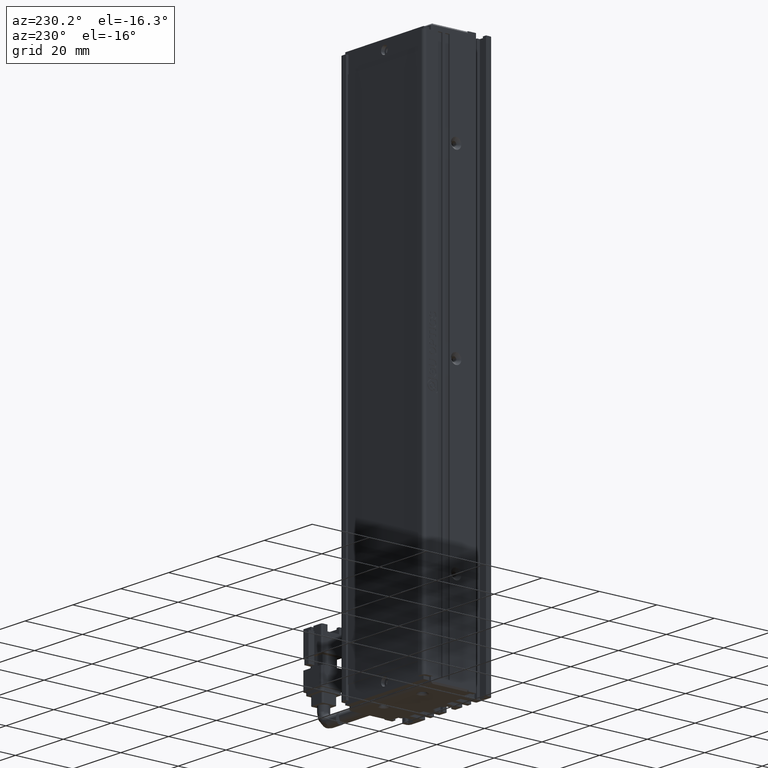
[diagram: clean part render]
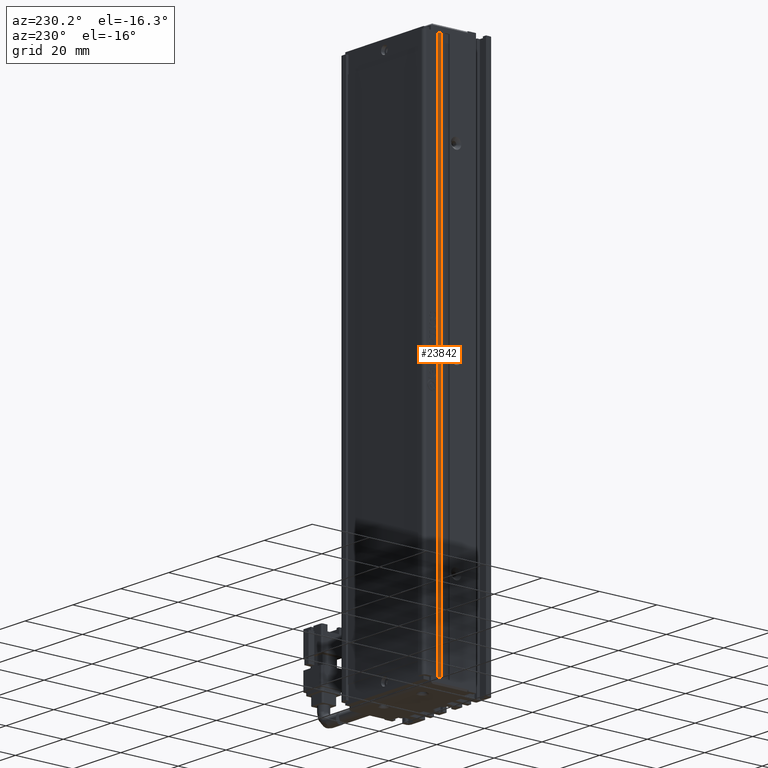
[diagram: same view with one face highlighted and labeled with its STEP entity id]
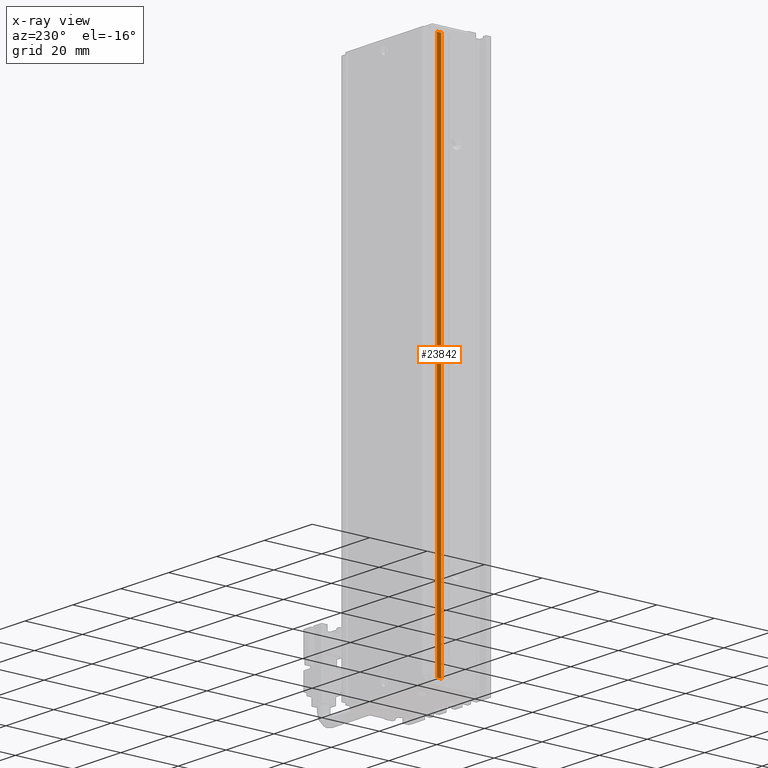
[diagram: x-ray of the same camera — body ghosted, the highlighted face saturated]
A machine part, auxiliary view. The second image highlights one B-rep face of the part: STEP entity #23842.
The next image is the same camera in x-ray: the body ghosted, the highlighted face saturated — about 0% of this face is hidden behind the body in this view.
In plain terms, the highlighted planar face has unit normal (1, 0, -0).
Its self-contained STEP definition (entity closure, byte-faithful):
#200 = DIRECTION ( 'NONE',  ( -0.0000000000000000000, 0.0000000000000000000, -1.000000000000000000 ) ) ;
#753 = VERTEX_POINT ( 'NONE', #18929 ) ;
#4126 = VECTOR ( 'NONE', #49400, 1000.000000000000000 ) ;
#6080 = CARTESIAN_POINT ( 'NONE',  ( 23.92537974683542500, 7.083797468354437600, -23.00000000000000700 ) ) ;
#6101 = LINE ( 'NONE', #49951, #20360 ) ;
#12169 = DIRECTION ( 'NONE',  ( 1.000000000000000000, 0.0000000000000000000, -0.0000000000000000000 ) ) ;
#13682 = LINE ( 'NONE', #18632, #4126 ) ;
#16800 = CARTESIAN_POINT ( 'NONE',  ( 23.92537974683542500, 29.99073232304837300, -205.0000000000000300 ) ) ;
#18632 = CARTESIAN_POINT ( 'NONE',  ( 23.92537974683542500, 7.083797468354437600, -205.0000000000000300 ) ) ;
#18929 = CARTESIAN_POINT ( 'NONE',  ( 23.92537974683542500, 28.49073232304837000, -205.0000000000000300 ) ) ;
#19624 = VERTEX_POINT ( 'NONE', #16800 ) ;
#20360 = VECTOR ( 'NONE', #31238, 1000.000000000000000 ) ;
#21017 = CARTESIAN_POINT ( 'NONE',  ( 23.92537974683542500, 29.99073232304837300, -23.00000000000000700 ) ) ;
#23842 = ADVANCED_FACE ( 'NONE', ( #68127 ), #36032, .F. ) ;
#24613 = CARTESIAN_POINT ( 'NONE',  ( 23.92537974683542500, 28.49073232304837000, -23.00000000000000700 ) ) ;
#26458 = CARTESIAN_POINT ( 'NONE',  ( 23.92537974683542500, 29.99073232304837300, -24.99999999999999300 ) ) ;
#31238 = DIRECTION ( 'NONE',  ( -0.0000000000000000000, -1.000000000000000000, -0.0000000000000000000 ) ) ;
#31609 = VERTEX_POINT ( 'NONE', #26458 ) ;
#33453 = DIRECTION ( 'NONE',  ( -0.0000000000000000000, 0.0000000000000000000, -1.000000000000000000 ) ) ;
#33477 = ORIENTED_EDGE ( 'NONE', *, *, #34748, .T. ) ;
#34748 = EDGE_CURVE ( 'NONE', #31609, #19624, #73424, .T. ) ;
#36032 = PLANE ( 'NONE',  #61953 ) ;
#36049 = LINE ( 'NONE', #24613, #40877 ) ;
#40877 = VECTOR ( 'NONE', #61099, 1000.000000000000000 ) ;
#41203 = EDGE_LOOP ( 'NONE', ( #76280, #33477, #67344, #42787 ) ) ;
#42787 = ORIENTED_EDGE ( 'NONE', *, *, #45591, .F. ) ;
#43482 = EDGE_CURVE ( 'NONE', #31609, #71816, #6101, .T. ) ;
#45591 = EDGE_CURVE ( 'NONE', #71816, #753, #36049, .T. ) ;
#49400 = DIRECTION ( 'NONE',  ( 0.0000000000000000000, 1.000000000000000000, 0.0000000000000000000 ) ) ;
#49951 = CARTESIAN_POINT ( 'NONE',  ( 23.92537974683542500, 7.083797468354437600, -25.00000000000000700 ) ) ;
#55430 = EDGE_CURVE ( 'NONE', #753, #19624, #13682, .T. ) ;
#61099 = DIRECTION ( 'NONE',  ( -0.0000000000000000000, 0.0000000000000000000, -1.000000000000000000 ) ) ;
#61953 = AXIS2_PLACEMENT_3D ( 'NONE', #6080, #12169, #200 ) ;
#65006 = CARTESIAN_POINT ( 'NONE',  ( 23.92537974683542500, 28.49073232304837000, -24.99999999999999300 ) ) ;
#66789 = VECTOR ( 'NONE', #33453, 1000.000000000000000 ) ;
#67344 = ORIENTED_EDGE ( 'NONE', *, *, #55430, .F. ) ;
#68127 = FACE_OUTER_BOUND ( 'NONE', #41203, .T. ) ;
#71816 = VERTEX_POINT ( 'NONE', #65006 ) ;
#73424 = LINE ( 'NONE', #21017, #66789 ) ;
#76280 = ORIENTED_EDGE ( 'NONE', *, *, #43482, .F. ) ;